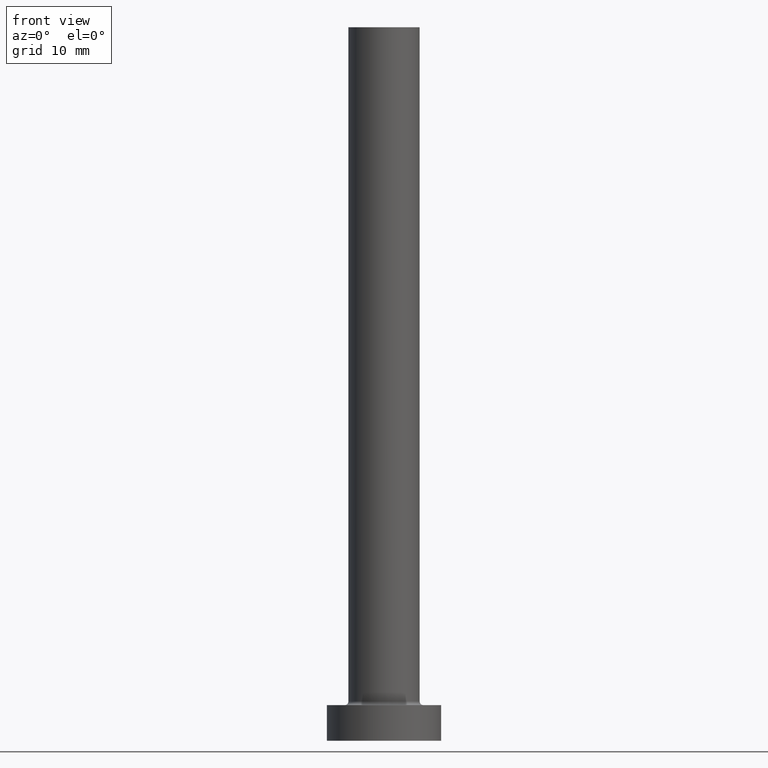
[diagram: clean part render]
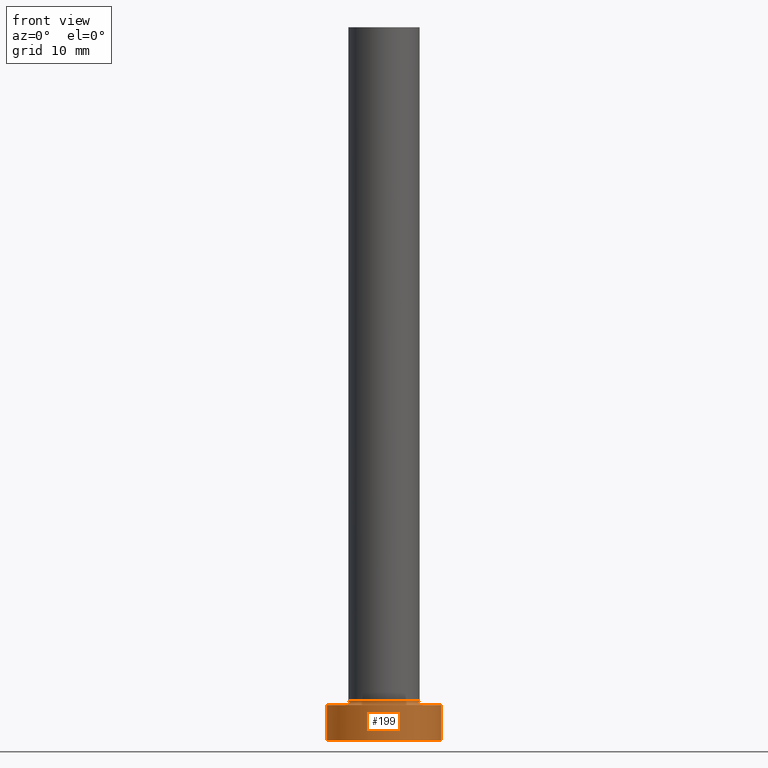
[diagram: same view with one face highlighted and labeled with its STEP entity id]
A machine part, front view. The second image highlights one B-rep face of the part: STEP entity #199.
In plain terms, the highlighted cylindrical surface (partial cylindrical patch) has radius 8 mm, axis along (-0, -0, -1).
Its self-contained STEP definition (entity closure, byte-faithful):
#1 = CIRCLE ( 'NONE', #333, 8.000000000000000000 ) ;
#2 = EDGE_CURVE ( 'NONE', #444, #179, #454, .T. ) ;
#12 = DIRECTION ( 'NONE',  ( -1.000000000000000000, 0.000000000000000000, 0.000000000000000000 ) ) ;
#14 = LINE ( 'NONE', #159, #218 ) ;
#39 = CARTESIAN_POINT ( 'NONE',  ( 8.000000000000000000, 9.797174393178825657E-16, 5.000000000000000000 ) ) ;
#50 = ORIENTED_EDGE ( 'NONE', *, *, #94, .F. ) ;
#68 = CARTESIAN_POINT ( 'NONE',  ( -8.000000000000000000, 0.000000000000000000, 5.000000000000000000 ) ) ;
#94 = EDGE_CURVE ( 'NONE', #150, #300, #14, .T. ) ;
#105 = AXIS2_PLACEMENT_3D ( 'NONE', #328, #123, #12 ) ;
#110 = VECTOR ( 'NONE', #136, 1000.000000000000000 ) ;
#112 = CARTESIAN_POINT ( 'NONE',  ( -8.000000000000000000, 0.000000000000000000, 0.000000000000000000 ) ) ;
#121 = EDGE_CURVE ( 'NONE', #179, #300, #341, .T. ) ;
#123 = DIRECTION ( 'NONE',  ( -0.000000000000000000, -0.000000000000000000, -1.000000000000000000 ) ) ;
#132 = CARTESIAN_POINT ( 'NONE',  ( 8.000000000000000000, 9.797174393178825657E-16, 0.000000000000000000 ) ) ;
#136 = DIRECTION ( 'NONE',  ( -0.000000000000000000, -0.000000000000000000, -1.000000000000000000 ) ) ;
#150 = VERTEX_POINT ( 'NONE', #39 ) ;
#159 = CARTESIAN_POINT ( 'NONE',  ( 8.000000000000000000, 9.797174393178825657E-16, 5.000000000000000000 ) ) ;
#166 = EDGE_LOOP ( 'NONE', ( #50, #450, #235, #169 ) ) ;
#169 = ORIENTED_EDGE ( 'NONE', *, *, #121, .T. ) ;
#179 = VERTEX_POINT ( 'NONE', #112 ) ;
#183 = FACE_OUTER_BOUND ( 'NONE', #166, .T. ) ;
#199 = ADVANCED_FACE ( 'NONE', ( #183 ), #295, .T. ) ;
#213 = DIRECTION ( 'NONE',  ( -0.000000000000000000, -0.000000000000000000, -1.000000000000000000 ) ) ;
#218 = VECTOR ( 'NONE', #213, 1000.000000000000000 ) ;
#235 = ORIENTED_EDGE ( 'NONE', *, *, #2, .T. ) ;
#242 = EDGE_CURVE ( 'NONE', #444, #150, #1, .T. ) ;
#256 = DIRECTION ( 'NONE',  ( 1.000000000000000000, 0.000000000000000000, 0.000000000000000000 ) ) ;
#262 = CARTESIAN_POINT ( 'NONE',  ( 0.000000000000000000, 0.000000000000000000, 5.000000000000000000 ) ) ;
#295 = CYLINDRICAL_SURFACE ( 'NONE', #105, 8.000000000000000000 ) ;
#300 = VERTEX_POINT ( 'NONE', #132 ) ;
#328 = CARTESIAN_POINT ( 'NONE',  ( 0.000000000000000000, 0.000000000000000000, 5.000000000000000000 ) ) ;
#333 = AXIS2_PLACEMENT_3D ( 'NONE', #262, #407, #449 ) ;
#341 = CIRCLE ( 'NONE', #457, 8.000000000000000000 ) ;
#348 = CARTESIAN_POINT ( 'NONE',  ( -8.000000000000000000, 0.000000000000000000, 5.000000000000000000 ) ) ;
#407 = DIRECTION ( 'NONE',  ( 0.000000000000000000, 0.000000000000000000, 1.000000000000000000 ) ) ;
#429 = CARTESIAN_POINT ( 'NONE',  ( 0.000000000000000000, 0.000000000000000000, 0.000000000000000000 ) ) ;
#435 = DIRECTION ( 'NONE',  ( 0.000000000000000000, 0.000000000000000000, 1.000000000000000000 ) ) ;
#444 = VERTEX_POINT ( 'NONE', #348 ) ;
#449 = DIRECTION ( 'NONE',  ( 1.000000000000000000, 0.000000000000000000, 0.000000000000000000 ) ) ;
#450 = ORIENTED_EDGE ( 'NONE', *, *, #242, .F. ) ;
#454 = LINE ( 'NONE', #68, #110 ) ;
#457 = AXIS2_PLACEMENT_3D ( 'NONE', #429, #435, #256 ) ;